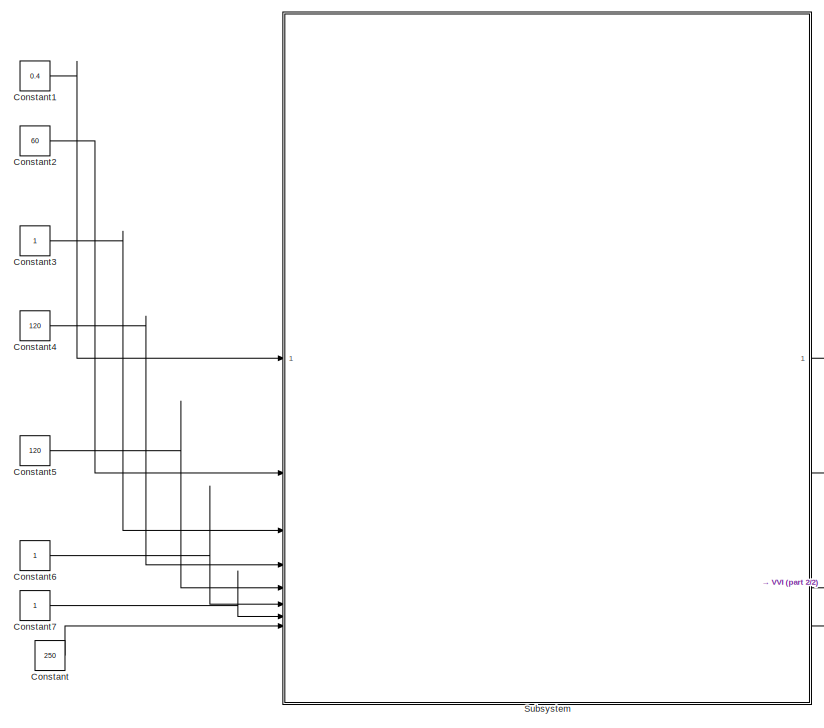
[diagram: root canvas - part 1/2, left side, full height]
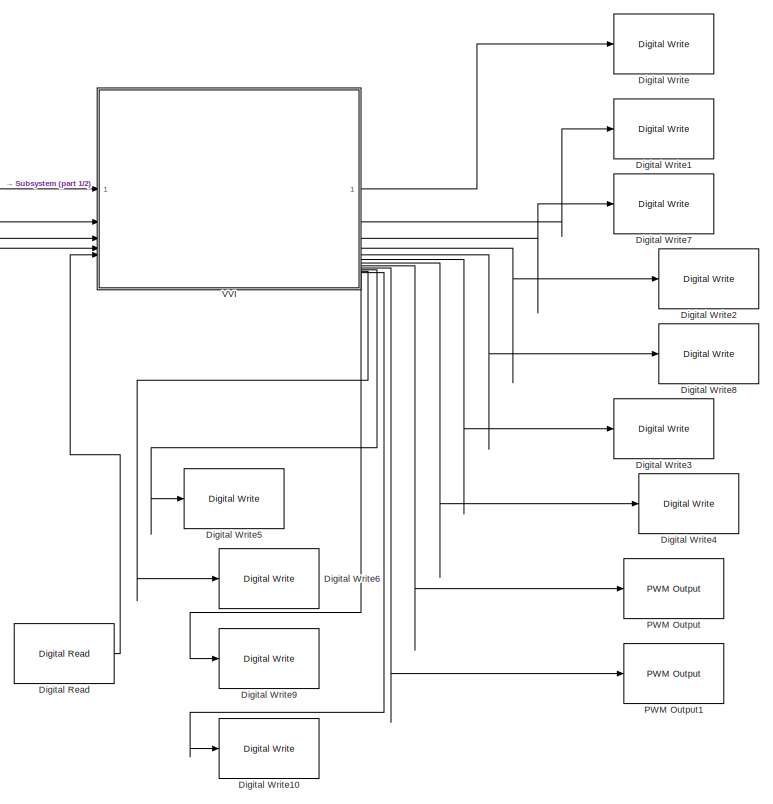
[diagram: root canvas - part 2/2, right side, full height]
MODEL slx_e1296cb5963e
KIND model
CONFIG AbsTol = auto
CONFIG EnableMultiTasking = on
CONFIG FixedStep = 1e-3
CONFIG MaxStep = auto
CONFIG MinStep = auto
CONFIG RelTol = 1e-3
CONFIG SampleTimeConstraint = Unconstrained
CONFIG SolverName = FixedStepAuto
CONFIG StartTime = 0.0
CONFIG StopTime = 10.0
BLOCK [Constant] Constant
  OutDataTypeStr = int16
  Value = 250
BLOCK [Constant] Constant1
  OutDataTypeStr = int16
  Value = 0.4
BLOCK [Constant] Constant2
  OutDataTypeStr = int16
  Value = 60
BLOCK [Constant] Constant3
  OutDataTypeStr = int16
BLOCK [Constant] Constant4
  OutDataTypeStr = int16
  Value = 120
BLOCK [Constant] Constant5
  OutDataTypeStr = int16
  Value = 120
BLOCK [Constant] Constant6
  OutDataTypeStr = int16
BLOCK [Constant] Constant7
  OutDataTypeStr = int16
BLOCK [Reference] Digital Read  REF=frdmk64flib/Digital Read
  SourceBlock = frdmk64flib/Digital Read
  SourceType = freedomk64f.DigitalRead
BLOCK [Reference] Digital Write  REF=frdmk64flib/Digital Write
  SourceBlock = frdmk64flib/Digital Write
  SourceType = freedomk64f.DigitalWrite
BLOCK [Reference] Digital Write1  REF=frdmk64flib/Digital Write
  SourceBlock = frdmk64flib/Digital Write
  SourceType = freedomk64f.DigitalWrite
BLOCK [Reference] Digital Write10  REF=frdmk64flib/Digital Write
  SourceBlock = frdmk64flib/Digital Write
  SourceType = freedomk64f.DigitalWrite
BLOCK [Reference] Digital Write2  REF=frdmk64flib/Digital Write
  SourceBlock = frdmk64flib/Digital Write
  SourceType = freedomk64f.DigitalWrite
BLOCK [Reference] Digital Write3  REF=frdmk64flib/Digital Write
  SourceBlock = frdmk64flib/Digital Write
  SourceType = freedomk64f.DigitalWrite
BLOCK [Reference] Digital Write4  REF=frdmk64flib/Digital Write
  SourceBlock = frdmk64flib/Digital Write
  SourceType = freedomk64f.DigitalWrite
BLOCK [Reference] Digital Write5  REF=frdmk64flib/Digital Write
  SourceBlock = frdmk64flib/Digital Write
  SourceType = freedomk64f.DigitalWrite
BLOCK [Reference] Digital Write6  REF=frdmk64flib/Digital Write
  SourceBlock = frdmk64flib/Digital Write
  SourceType = freedomk64f.DigitalWrite
BLOCK [Reference] Digital Write7  REF=frdmk64flib/Digital Write
  SourceBlock = frdmk64flib/Digital Write
  SourceType = freedomk64f.DigitalWrite
BLOCK [Reference] Digital Write8  REF=frdmk64flib/Digital Write
  SourceBlock = frdmk64flib/Digital Write
  SourceType = freedomk64f.DigitalWrite
BLOCK [Reference] Digital Write9  REF=frdmk64flib/Digital Write
  SourceBlock = frdmk64flib/Digital Write
  SourceType = freedomk64f.DigitalWrite
BLOCK [Reference] PWM Output  REF=frdmk64flib/PWM Output
  SourceBlock = frdmk64flib/PWM Output
  SourceType = freedomk64f.PWMOutput
BLOCK [Reference] PWM Output1  REF=frdmk64flib/PWM Output
  SourceBlock = frdmk64flib/PWM Output
  SourceType = freedomk64f.PWMOutput
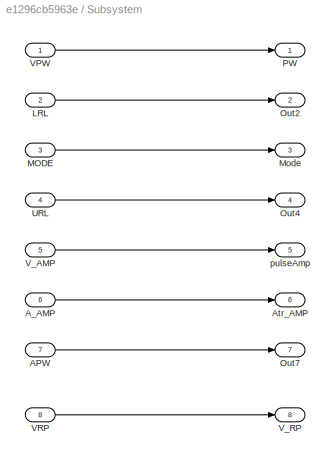
BLOCK [SubSystem] Subsystem
BLOCK [Inport] Subsystem/APW
  OutDataTypeStr = int16
  Port = 7
BLOCK [Inport] Subsystem/A_AMP
  OutDataTypeStr = int16
  Port = 6
BLOCK [Outport] Subsystem/Atr_AMP
  Port = 6
BLOCK [Inport] Subsystem/LRL
  OutDataTypeStr = int16
  Port = 2
BLOCK [Inport] Subsystem/MODE
  Port = 3
BLOCK [Outport] Subsystem/Mode
  Port = 3
BLOCK [Outport] Subsystem/Out2
  Port = 2
BLOCK [Outport] Subsystem/Out4
  Port = 4
BLOCK [Outport] Subsystem/Out7
  Port = 7
BLOCK [Outport] Subsystem/PW
BLOCK [Inport] Subsystem/URL
  OutDataTypeStr = int16
  Port = 4
BLOCK [Inport] Subsystem/VPW
  OutDataTypeStr = int16
BLOCK [Inport] Subsystem/VRP
  OutDataTypeStr = int16
  Port = 8
BLOCK [Inport] Subsystem/V_AMP
  OutDataTypeStr = int16
  Port = 5
BLOCK [Outport] Subsystem/V_RP
  Port = 8
BLOCK [Outport] Subsystem/pulseAmp
  Port = 5
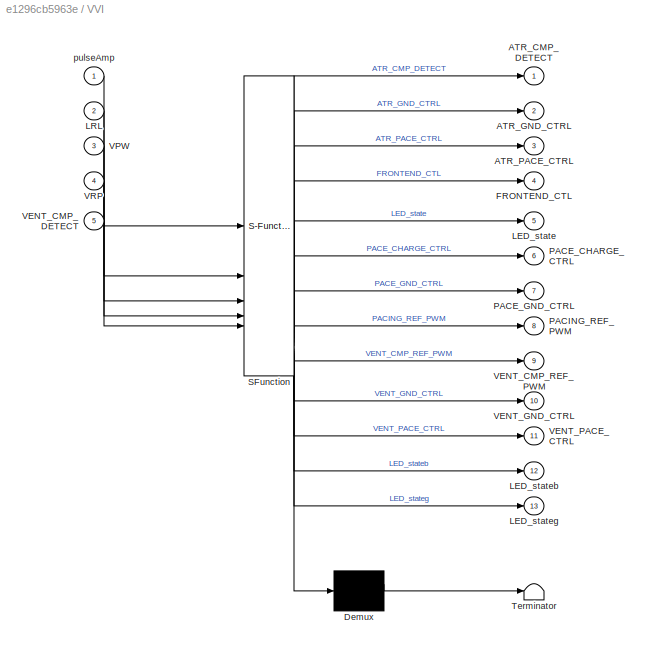
BLOCK [SubSystem] VVI
  ErrorFcn = Stateflow.Translate.translate
  PermitHierarchicalResolution = ExplicitOnly
  SFBlockType = Chart
  TreatAsAtomicUnit = on
BLOCK [Demux] VVI/ Demux 
  Outputs = 1
BLOCK [S-Function] VVI/ SFunction 
  EnableBusSupport = on
  FunctionName = sf_sfun
  PortCounts = [5 14]
  SFcnIsStateOwnerBlock = off
  SFunctionDeploymentMode = off
  Tag = Stateflow S-Function 4
BLOCK [Terminator] VVI/ Terminator 
BLOCK [Outport] VVI/ATR_CMP_DETECT
BLOCK [Outport] VVI/ATR_GND_CTRL
  Port = 2
BLOCK [Outport] VVI/ATR_PACE_CTRL
  Port = 3
BLOCK [Outport] VVI/FRONTEND_CTL
  Port = 4
BLOCK [Outport] VVI/LED_state
  Port = 5
BLOCK [Outport] VVI/LED_stateb
  Port = 12
BLOCK [Outport] VVI/LED_stateg
  Port = 13
BLOCK [Inport] VVI/LRL
  Port = 2
BLOCK [Outport] VVI/PACE_CHARGE_CTRL
  Port = 6
BLOCK [Outport] VVI/PACE_GND_CTRL
  Port = 7
BLOCK [Outport] VVI/PACING_REF_PWM
  Port = 8
BLOCK [Inport] VVI/VENT_CMP_DETECT
  Port = 5
BLOCK [Outport] VVI/VENT_CMP_REF_PWM
  Port = 9
BLOCK [Outport] VVI/VENT_GND_CTRL
  Port = 10
BLOCK [Outport] VVI/VENT_PACE_CTRL
  Port = 11
BLOCK [Inport] VVI/VPW
  Port = 3
BLOCK [Inport] VVI/VRP
  Port = 4
BLOCK [Inport] VVI/pulseAmp
LINE Constant1:1 -> Subsystem:1
LINE Constant2:1 -> Subsystem:2
LINE Constant3:1 -> Subsystem:3
LINE Constant4:1 -> Subsystem:4
LINE Constant5:1 -> Subsystem:5
LINE Constant6:1 -> Subsystem:6
LINE Constant7:1 -> Subsystem:7
LINE Constant:1 -> Subsystem:8
LINE Digital Read:1 -> VVI:5
LINE Subsystem/APW:1 -> Subsystem/Out7:1
LINE Subsystem/A_AMP:1 -> Subsystem/Atr_AMP:1
LINE Subsystem/LRL:1 -> Subsystem/Out2:1
LINE Subsystem/MODE:1 -> Subsystem/Mode:1
LINE Subsystem/URL:1 -> Subsystem/Out4:1
LINE Subsystem/VPW:1 -> Subsystem/PW:1
LINE Subsystem/VRP:1 -> Subsystem/V_RP:1
LINE Subsystem/V_AMP:1 -> Subsystem/pulseAmp:1
LINE Subsystem:1 -> VVI:3
LINE Subsystem:2 -> VVI:2
LINE Subsystem:5 -> VVI:1
LINE Subsystem:8 -> VVI:4
LINE VVI:1 -> Digital Write:1
LINE VVI:10 -> Digital Write5:1
LINE VVI:11 -> Digital Write6:1
LINE VVI:12 -> Digital Write10:1
LINE VVI:13 -> Digital Write9:1
LINE VVI:2 -> Digital Write1:1
LINE VVI:3 -> Digital Write7:1
LINE VVI:4 -> Digital Write2:1
LINE VVI:5 -> Digital Write8:1
LINE VVI:6 -> Digital Write3:1
LINE VVI:7 -> Digital Write4:1
LINE VVI:8 -> PWM Output:1
LINE VVI:9 -> PWM Output1:1
CHART VVI states=3 transitions=5
  STATE_LABEL ' SETUP_VENT_SENSE %State 1(VOO)\n\nentry:\nFRONTEND_CTL = true;\nPACING_REF_PWM = 40;\n%(pulseAmp/5)\nVENT_CMP_REF_PWM = 53;\nPACE_GND_CTRL = true;\nATR_CMP_DETECT = false;\nPACE_CHARGE_CTRL = true;\nVENT_PACE_CTRL = false;\nVENT_GND_CTRL = true;\nATR_PACE_CTRL = false;\nATR_GND_CTRL = false;\nLED_state=false;\nLED_stateb=false;\nLED_stateg=false;\n'
  STATE_LABEL 'SENSE_PULSE %Start sensing after VRP\nentry:\nLED_state=false;\nLED_stateb=true;\nLED_stateg=false;'
  STATE_LABEL 'VENT_PACE_PT2 %Discharging C22\nentry:\nPACE_CHARGE_CTRL = false;\nVENT_PACE_CTRL = true;\nVENT_GND_CTRL = false; %not sure\n%LED STATE\nLED_state=true;\nLED_stateb=false;\nLED_stateg=false;'
CHART  states=0 transitions=0
